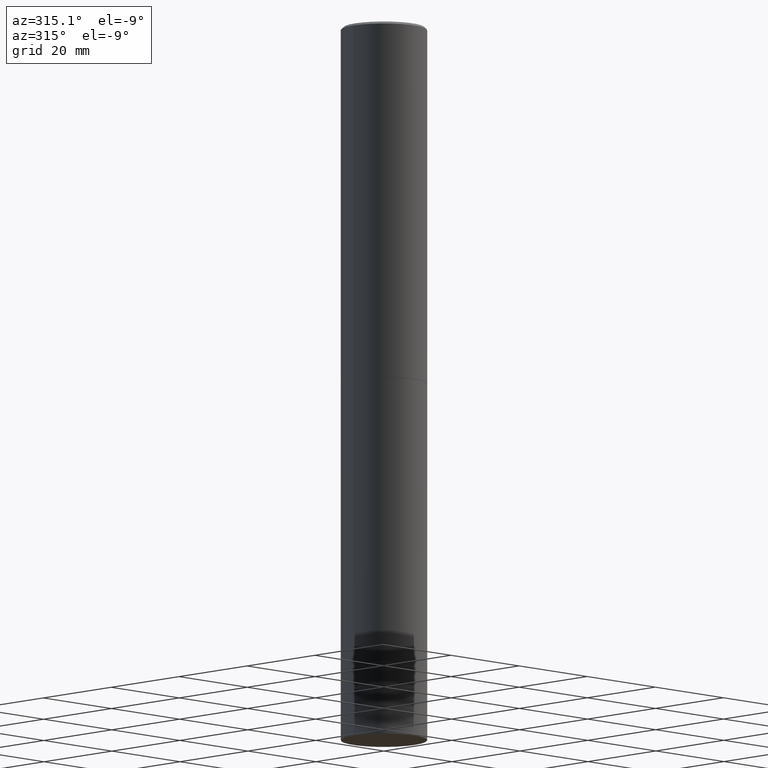
[diagram: clean part render]
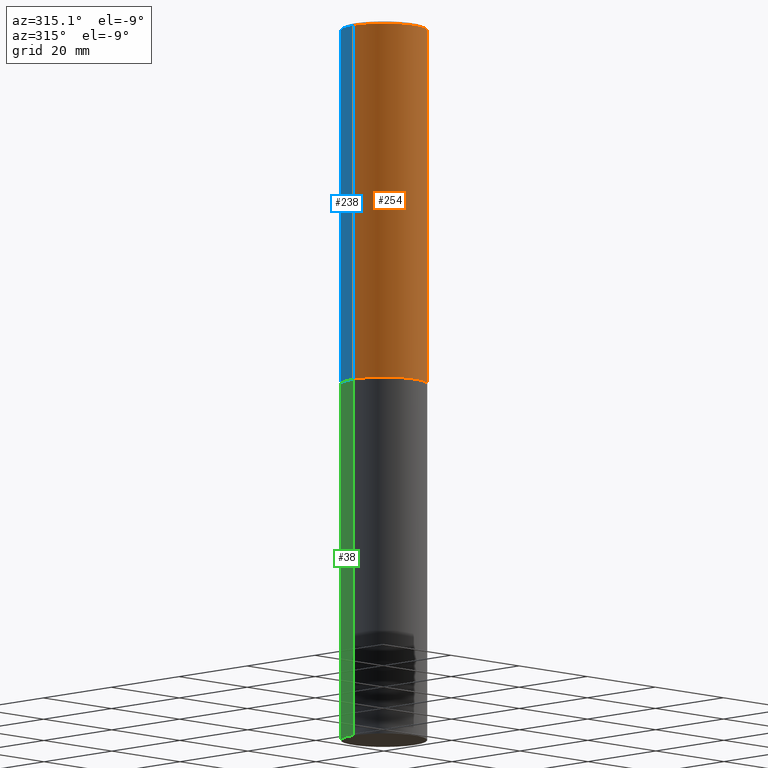
[diagram: same view with three faces highlighted in distinct colors, each labeled with its STEP entity id]
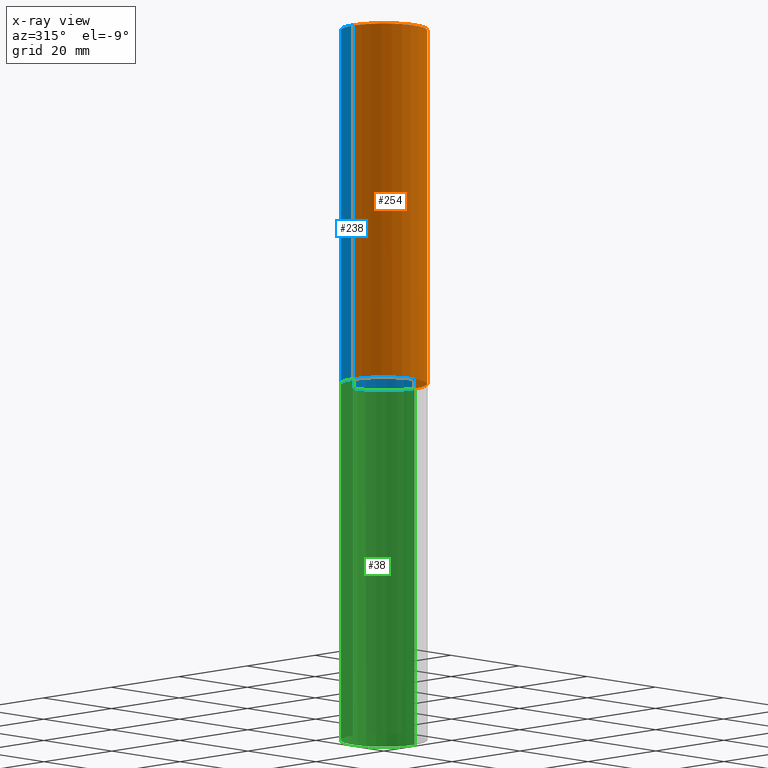
[diagram: x-ray of the same camera — body ghosted, the three highlighted faces saturated]
A machine part, auxiliary view with three faces highlighted in distinct colors.
The next image is the same camera in x-ray (body ghosted, the three faces saturated) — at least one of them is partly hidden behind the body in this view.
Their STEP definitions:

[orange] entity #254 — the highlighted cylindrical surface (partial cylindrical patch) has radius 9.0005 mm, axis along (-0, 0, 1).
#1 = DIRECTION ( 'NONE',  ( -2.445468806185136597E-29, 3.491481338843145583E-15, 1.000000000000000000 ) ) ;
#3 = CARTESIAN_POINT ( 'NONE',  ( 0.3543499999999998873, -2.474412824838127905E-15, 1.727873240503289188E-29 ) ) ;
#20 = EDGE_LOOP ( 'NONE', ( #158, #314, #114, #344 ) ) ;
#21 = EDGE_CURVE ( 'NONE', #103, #310, #338, .T. ) ;
#30 = EDGE_CURVE ( 'NONE', #32, #103, #287, .T. ) ;
#32 = VERTEX_POINT ( 'NONE', #175 ) ;
#35 = VECTOR ( 'NONE', #116, 39.37007874015748143 ) ;
#48 = VECTOR ( 'NONE', #108, 39.37007874015748143 ) ;
#83 = VERTEX_POINT ( 'NONE', #104 ) ;
#103 = VERTEX_POINT ( 'NONE', #302 ) ;
#104 = CARTESIAN_POINT ( 'NONE',  ( -0.3543499999999996652, 2.404583198061263029E-15, -0.02000000000000008021 ) ) ;
#108 = DIRECTION ( 'NONE',  ( -2.445468806185136877E-29, 3.491481338843145188E-15, 1.000000000000000000 ) ) ;
#113 = CYLINDRICAL_SURFACE ( 'NONE', #277, 0.3543499999999998873 ) ;
#114 = ORIENTED_EDGE ( 'NONE', *, *, #21, .T. ) ;
#116 = DIRECTION ( 'NONE',  ( -2.445468806185136877E-29, 3.491481338843145188E-15, 1.000000000000000000 ) ) ;
#132 = AXIS2_PLACEMENT_3D ( 'NONE', #251, #1, #365 ) ;
#158 = ORIENTED_EDGE ( 'NONE', *, *, #270, .F. ) ;
#163 = DIRECTION ( 'NONE',  ( -2.445468806185136597E-29, 3.491481338843145583E-15, 1.000000000000000000 ) ) ;
#175 = CARTESIAN_POINT ( 'NONE',  ( -0.3543499999999999983, -2.670009363154171868E-15, -2.951700000000000212 ) ) ;
#231 = CARTESIAN_POINT ( 'NONE',  ( 7.218290275216666916E-29, -1.030580546786331359E-14, -2.951700000000000212 ) ) ;
#250 = CARTESIAN_POINT ( 'NONE',  ( 0.3543499999999996652, -2.500847092287203323E-15, -0.02000000000000008021 ) ) ;
#251 = CARTESIAN_POINT ( 'NONE',  ( 4.890937612370293302E-31, -6.982962677686318726E-17, -0.02000000000000008021 ) ) ;
#254 = ADVANCED_FACE ( 'NONE', ( #333 ), #113, .T. ) ;
#270 = EDGE_CURVE ( 'NONE', #32, #83, #339, .T. ) ;
#277 = AXIS2_PLACEMENT_3D ( 'NONE', #315, #163, #363 ) ;
#283 = CARTESIAN_POINT ( 'NONE',  ( -0.3543499999999998873, 2.517808184165914208E-15, -1.743024649231825225E-29 ) ) ;
#287 = CIRCLE ( 'NONE', #293, 0.3543499999999999983 ) ;
#293 = AXIS2_PLACEMENT_3D ( 'NONE', #231, #340, #316 ) ;
#302 = CARTESIAN_POINT ( 'NONE',  ( 0.3543499999999999983, -1.278021829270144189E-14, -2.951700000000000212 ) ) ;
#310 = VERTEX_POINT ( 'NONE', #250 ) ;
#314 = ORIENTED_EDGE ( 'NONE', *, *, #30, .T. ) ;
#315 = CARTESIAN_POINT ( 'NONE',  ( 0.000000000000000000, 0.000000000000000000, 0.000000000000000000 ) ) ;
#316 = DIRECTION ( 'NONE',  ( 1.000000000000000000, -6.982962677686265922E-15, 0.000000000000000000 ) ) ;
#333 = FACE_OUTER_BOUND ( 'NONE', #20, .T. ) ;
#338 = LINE ( 'NONE', #3, #35 ) ;
#339 = LINE ( 'NONE', #283, #48 ) ;
#340 = DIRECTION ( 'NONE',  ( -2.445468806185136597E-29, 3.491481338843145583E-15, 1.000000000000000000 ) ) ;
#344 = ORIENTED_EDGE ( 'NONE', *, *, #348, .F. ) ;
#348 = EDGE_CURVE ( 'NONE', #83, #310, #353, .T. ) ;
#353 = CIRCLE ( 'NONE', #132, 0.3543499999999996652 ) ;
#363 = DIRECTION ( 'NONE',  ( 1.000000000000000000, -6.982962677686266711E-15, 4.876176775795935232E-29 ) ) ;
#365 = DIRECTION ( 'NONE',  ( 1.000000000000000000, -6.982962677686266711E-15, 0.000000000000000000 ) ) ;

[blue] entity #238 — the highlighted cylindrical surface (partial cylindrical patch) has radius 9.0005 mm, axis along (-0, 0, 1).
#3 = CARTESIAN_POINT ( 'NONE',  ( 0.3543499999999998873, -2.474412824838127905E-15, 1.727873240503289188E-29 ) ) ;
#16 = CARTESIAN_POINT ( 'NONE',  ( 7.218290275216666916E-29, -1.030580546786331359E-14, -2.951700000000000212 ) ) ;
#21 = EDGE_CURVE ( 'NONE', #103, #310, #338, .T. ) ;
#32 = VERTEX_POINT ( 'NONE', #175 ) ;
#35 = VECTOR ( 'NONE', #116, 39.37007874015748143 ) ;
#48 = VECTOR ( 'NONE', #108, 39.37007874015748143 ) ;
#83 = VERTEX_POINT ( 'NONE', #104 ) ;
#91 = CYLINDRICAL_SURFACE ( 'NONE', #241, 0.3543499999999998873 ) ;
#100 = EDGE_CURVE ( 'NONE', #310, #83, #122, .T. ) ;
#103 = VERTEX_POINT ( 'NONE', #302 ) ;
#104 = CARTESIAN_POINT ( 'NONE',  ( -0.3543499999999996652, 2.404583198061263029E-15, -0.02000000000000008021 ) ) ;
#106 = AXIS2_PLACEMENT_3D ( 'NONE', #16, #332, #272 ) ;
#108 = DIRECTION ( 'NONE',  ( -2.445468806185136877E-29, 3.491481338843145188E-15, 1.000000000000000000 ) ) ;
#116 = DIRECTION ( 'NONE',  ( -2.445468806185136877E-29, 3.491481338843145188E-15, 1.000000000000000000 ) ) ;
#122 = CIRCLE ( 'NONE', #180, 0.3543499999999996652 ) ;
#131 = DIRECTION ( 'NONE',  ( -2.445468806185136597E-29, 3.491481338843145583E-15, 1.000000000000000000 ) ) ;
#136 = DIRECTION ( 'NONE',  ( -2.445468806185136597E-29, 3.491481338843145583E-15, 1.000000000000000000 ) ) ;
#137 = CARTESIAN_POINT ( 'NONE',  ( 0.000000000000000000, 0.000000000000000000, 0.000000000000000000 ) ) ;
#161 = CARTESIAN_POINT ( 'NONE',  ( 4.890937612370293302E-31, -6.982962677686318726E-17, -0.02000000000000008021 ) ) ;
#169 = ORIENTED_EDGE ( 'NONE', *, *, #21, .F. ) ;
#175 = CARTESIAN_POINT ( 'NONE',  ( -0.3543499999999999983, -2.670009363154171868E-15, -2.951700000000000212 ) ) ;
#180 = AXIS2_PLACEMENT_3D ( 'NONE', #161, #131, #246 ) ;
#184 = EDGE_CURVE ( 'NONE', #103, #32, #256, .T. ) ;
#238 = ADVANCED_FACE ( 'NONE', ( #342 ), #91, .T. ) ;
#241 = AXIS2_PLACEMENT_3D ( 'NONE', #137, #136, #278 ) ;
#245 = ORIENTED_EDGE ( 'NONE', *, *, #100, .F. ) ;
#246 = DIRECTION ( 'NONE',  ( 1.000000000000000000, -6.982962677686266711E-15, 0.000000000000000000 ) ) ;
#247 = ORIENTED_EDGE ( 'NONE', *, *, #270, .T. ) ;
#249 = ORIENTED_EDGE ( 'NONE', *, *, #184, .T. ) ;
#250 = CARTESIAN_POINT ( 'NONE',  ( 0.3543499999999996652, -2.500847092287203323E-15, -0.02000000000000008021 ) ) ;
#256 = CIRCLE ( 'NONE', #106, 0.3543499999999999983 ) ;
#270 = EDGE_CURVE ( 'NONE', #32, #83, #339, .T. ) ;
#272 = DIRECTION ( 'NONE',  ( 1.000000000000000000, -6.982962677686265922E-15, 0.000000000000000000 ) ) ;
#278 = DIRECTION ( 'NONE',  ( 1.000000000000000000, -6.982962677686266711E-15, 4.876176775795935232E-29 ) ) ;
#283 = CARTESIAN_POINT ( 'NONE',  ( -0.3543499999999998873, 2.517808184165914208E-15, -1.743024649231825225E-29 ) ) ;
#302 = CARTESIAN_POINT ( 'NONE',  ( 0.3543499999999999983, -1.278021829270144189E-14, -2.951700000000000212 ) ) ;
#310 = VERTEX_POINT ( 'NONE', #250 ) ;
#331 = EDGE_LOOP ( 'NONE', ( #249, #247, #245, #169 ) ) ;
#332 = DIRECTION ( 'NONE',  ( -2.445468806185136597E-29, 3.491481338843145583E-15, 1.000000000000000000 ) ) ;
#338 = LINE ( 'NONE', #3, #35 ) ;
#339 = LINE ( 'NONE', #283, #48 ) ;
#342 = FACE_OUTER_BOUND ( 'NONE', #331, .T. ) ;

[green] entity #38 — the highlighted cylindrical surface (partial cylindrical patch) has radius 9.0005 mm, axis along (-0, 0, 1).
#2 = AXIS2_PLACEMENT_3D ( 'NONE', #126, #107, #186 ) ;
#13 = CIRCLE ( 'NONE', #81, 0.3543499999999999983 ) ;
#15 = DIRECTION ( 'NONE',  ( 1.000000000000000000, -6.982962677686266711E-15, 4.876176775795935793E-29 ) ) ;
#23 = AXIS2_PLACEMENT_3D ( 'NONE', #211, #157, #15 ) ;
#38 = ADVANCED_FACE ( 'NONE', ( #289 ), #95, .T. ) ;
#49 = CARTESIAN_POINT ( 'NONE',  ( -0.3543499999999999983, -1.294631181370425968E-14, -5.905499999999999972 ) ) ;
#80 = ORIENTED_EDGE ( 'NONE', *, *, #261, .T. ) ;
#81 = AXIS2_PLACEMENT_3D ( 'NONE', #168, #204, #230 ) ;
#84 = EDGE_CURVE ( 'NONE', #228, #133, #192, .T. ) ;
#92 = VERTEX_POINT ( 'NONE', #330 ) ;
#95 = CYLINDRICAL_SURFACE ( 'NONE', #23, 0.3543499999999999983 ) ;
#107 = DIRECTION ( 'NONE',  ( -2.445468806185136597E-29, 3.491481338843145583E-15, 1.000000000000000000 ) ) ;
#119 = EDGE_CURVE ( 'NONE', #92, #133, #190, .T. ) ;
#126 = CARTESIAN_POINT ( 'NONE',  ( 7.220735744022852519E-29, -1.030929694920215502E-14, -2.952700000000000102 ) ) ;
#133 = VERTEX_POINT ( 'NONE', #222 ) ;
#148 = VECTOR ( 'NONE', #335, 39.37007874015748143 ) ;
#157 = DIRECTION ( 'NONE',  ( -2.445468806185136597E-29, 3.491481338843145583E-15, 1.000000000000000000 ) ) ;
#162 = EDGE_LOOP ( 'NONE', ( #80, #286, #291, #219 ) ) ;
#168 = CARTESIAN_POINT ( 'NONE',  ( 1.444171603492632270E-28, -2.061894304653819197E-14, -5.905499999999999972 ) ) ;
#186 = DIRECTION ( 'NONE',  ( 1.000000000000000000, -6.982962677686265922E-15, 0.000000000000000000 ) ) ;
#190 = CIRCLE ( 'NONE', #2, 0.3543499999999999983 ) ;
#191 = CARTESIAN_POINT ( 'NONE',  ( -0.3543499999999999983, 2.517808184165914997E-15, -1.743024649231826066E-29 ) ) ;
#192 = LINE ( 'NONE', #191, #279 ) ;
#197 = CARTESIAN_POINT ( 'NONE',  ( 0.3543499999999999983, -2.309335587137632500E-14, -5.905499999999999972 ) ) ;
#199 = LINE ( 'NONE', #285, #148 ) ;
#204 = DIRECTION ( 'NONE',  ( -2.445468806185136597E-29, 3.491481338843145583E-15, 1.000000000000000000 ) ) ;
#211 = CARTESIAN_POINT ( 'NONE',  ( 0.000000000000000000, 0.000000000000000000, 0.000000000000000000 ) ) ;
#219 = ORIENTED_EDGE ( 'NONE', *, *, #303, .F. ) ;
#222 = CARTESIAN_POINT ( 'NONE',  ( -0.3543499999999999983, -1.294631181370425968E-14, -2.952700000000000102 ) ) ;
#228 = VERTEX_POINT ( 'NONE', #49 ) ;
#230 = DIRECTION ( 'NONE',  ( 1.000000000000000000, -6.982962677686271444E-15, 0.000000000000000000 ) ) ;
#261 = EDGE_CURVE ( 'NONE', #273, #228, #13, .T. ) ;
#273 = VERTEX_POINT ( 'NONE', #197 ) ;
#279 = VECTOR ( 'NONE', #299, 39.37007874015748143 ) ;
#285 = CARTESIAN_POINT ( 'NONE',  ( 0.3543499999999999983, -2.474412824838128694E-15, 1.727873240503289749E-29 ) ) ;
#286 = ORIENTED_EDGE ( 'NONE', *, *, #84, .T. ) ;
#289 = FACE_OUTER_BOUND ( 'NONE', #162, .T. ) ;
#291 = ORIENTED_EDGE ( 'NONE', *, *, #119, .F. ) ;
#299 = DIRECTION ( 'NONE',  ( -2.445468806185136877E-29, 3.491481338843145188E-15, 1.000000000000000000 ) ) ;
#303 = EDGE_CURVE ( 'NONE', #273, #92, #199, .T. ) ;
#330 = CARTESIAN_POINT ( 'NONE',  ( 0.3543499999999999983, -1.278370977404028332E-14, -2.952700000000000102 ) ) ;
#335 = DIRECTION ( 'NONE',  ( -2.445468806185136877E-29, 3.491481338843145188E-15, 1.000000000000000000 ) ) ;